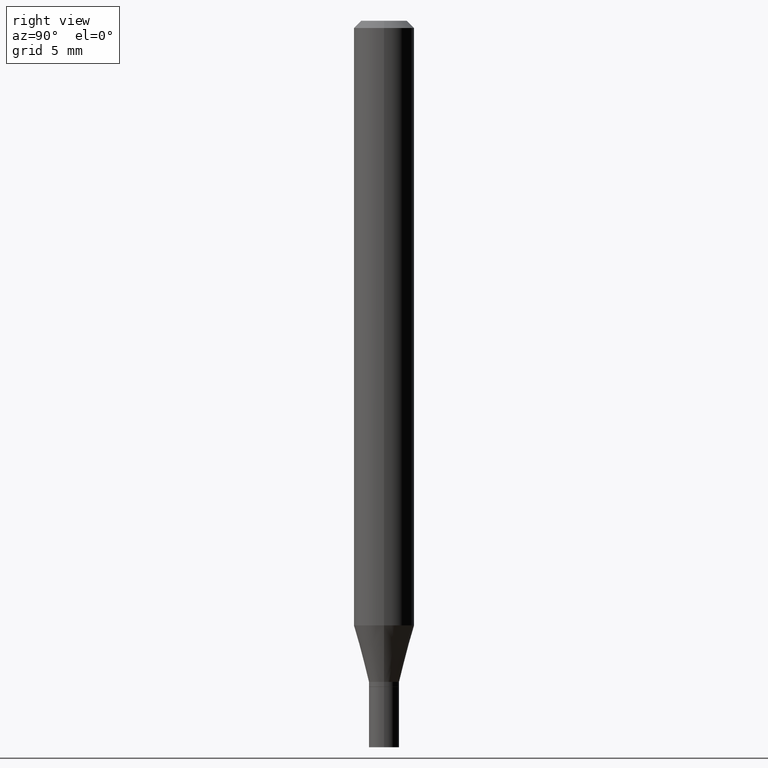
[diagram: clean part render]
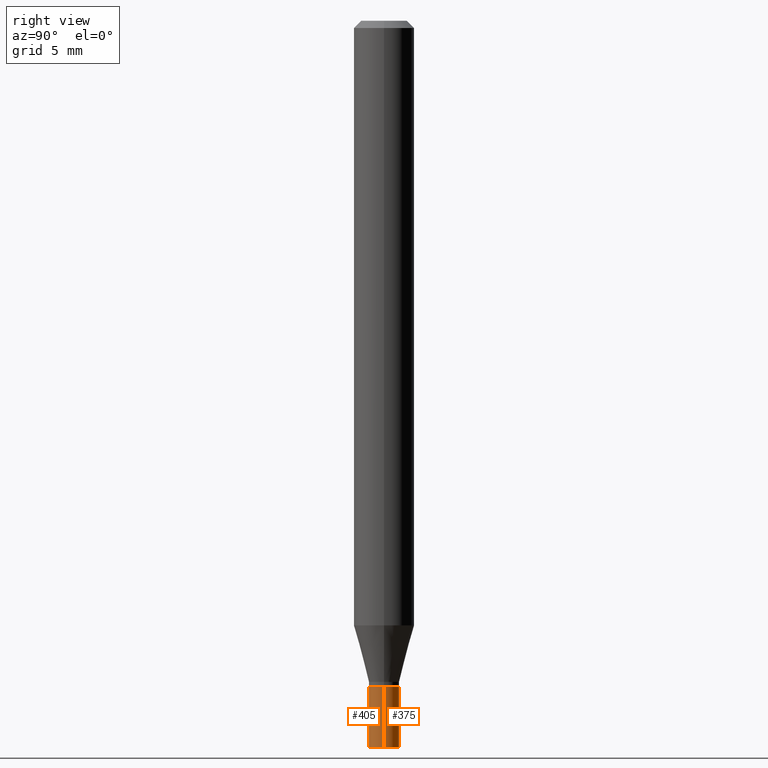
[diagram: same view with one multi-face feature highlighted, each face labeled with its STEP entity id]
A machine part, right view. The highlighted faces form ONE feature: a constant-radius fillet chain: 2 tangent blend faces with common blend radius 0.7938 mm. The faces share edges in the B-rep.
Their STEP definitions:
[1] entity #375 (Cylinder):
#17 = DIRECTION ( 'NONE',  ( -2.445468806185136877E-29, 3.491481338843145188E-15, 1.000000000000000000 ) ) ;
#21 = FACE_OUTER_BOUND ( 'NONE', #22, .T. ) ;
#22 = EDGE_LOOP ( 'NONE', ( #427, #107, #424, #59 ) ) ;
#23 = AXIS2_PLACEMENT_3D ( 'NONE', #282, #453, #243 ) ;
#52 = DIRECTION ( 'NONE',  ( -2.445468806185136597E-29, 3.491481338843145583E-15, 1.000000000000000000 ) ) ;
#59 = ORIENTED_EDGE ( 'NONE', *, *, #293, .F. ) ;
#78 = EDGE_CURVE ( 'NONE', #215, #431, #151, .T. ) ;
#86 = CARTESIAN_POINT ( 'NONE',  ( 3.668203209277704895E-29, -5.237222008264718177E-15, -1.500000000000000222 ) ) ;
#107 = ORIENTED_EDGE ( 'NONE', *, *, #121, .T. ) ;
#111 = AXIS2_PLACEMENT_3D ( 'NONE', #253, #137, #326 ) ;
#121 = EDGE_CURVE ( 'NONE', #431, #280, #276, .T. ) ;
#137 = DIRECTION ( 'NONE',  ( -2.445468806185136597E-29, 3.491481338843145583E-15, 1.000000000000000000 ) ) ;
#151 = CIRCLE ( 'NONE', #218, 0.03125000000000000694 ) ;
#191 = CARTESIAN_POINT ( 'NONE',  ( 0.03125000000000000694, -5.455439591942414011E-15, -1.500000000000000222 ) ) ;
#197 = CARTESIAN_POINT ( 'NONE',  ( 0.03125000000000000694, -5.019004424587020764E-15, -1.375000000000000000 ) ) ;
#210 = CARTESIAN_POINT ( 'NONE',  ( -0.03125000000000000694, -4.796959819661991034E-15, -1.500000000000000222 ) ) ;
#215 = VERTEX_POINT ( 'NONE', #191 ) ;
#218 = AXIS2_PLACEMENT_3D ( 'NONE', #86, #52, #379 ) ;
#233 = CIRCLE ( 'NONE', #111, 0.03125000000000000694 ) ;
#237 = CYLINDRICAL_SURFACE ( 'NONE', #23, 0.03125000000000000694 ) ;
#243 = DIRECTION ( 'NONE',  ( 1.000000000000000000, -6.982962677686267499E-15, 4.876176775795935793E-29 ) ) ;
#253 = CARTESIAN_POINT ( 'NONE',  ( 3.362519608504562260E-29, -4.800786840909324930E-15, -1.375000000000000000 ) ) ;
#264 = VECTOR ( 'NONE', #385, 39.37007874015748143 ) ;
#276 = LINE ( 'NONE', #417, #264 ) ;
#280 = VERTEX_POINT ( 'NONE', #337 ) ;
#282 = CARTESIAN_POINT ( 'NONE',  ( 0.000000000000000000, 0.000000000000000000, 0.000000000000000000 ) ) ;
#293 = EDGE_CURVE ( 'NONE', #215, #390, #307, .T. ) ;
#307 = LINE ( 'NONE', #386, #461 ) ;
#326 = DIRECTION ( 'NONE',  ( 1.000000000000000000, -6.982962677686261189E-15, 0.000000000000000000 ) ) ;
#337 = CARTESIAN_POINT ( 'NONE',  ( -0.03125000000000000694, -4.796959819661991034E-15, -1.375000000000000000 ) ) ;
#375 = ADVANCED_FACE ( 'NONE', ( #21 ), #237, .T. ) ;
#379 = DIRECTION ( 'NONE',  ( 1.000000000000000000, -6.982962677686261189E-15, 0.000000000000000000 ) ) ;
#385 = DIRECTION ( 'NONE',  ( -2.445468806185136877E-29, 3.491481338843145188E-15, 1.000000000000000000 ) ) ;
#386 = CARTESIAN_POINT ( 'NONE',  ( 0.03125000000000000694, -2.182175836776959087E-16, 1.523805242436230286E-30 ) ) ;
#390 = VERTEX_POINT ( 'NONE', #197 ) ;
#417 = CARTESIAN_POINT ( 'NONE',  ( -0.03125000000000000694, 2.220446049250313574E-16, -1.537167215704658582E-30 ) ) ;
#424 = ORIENTED_EDGE ( 'NONE', *, *, #450, .F. ) ;
#427 = ORIENTED_EDGE ( 'NONE', *, *, #78, .T. ) ;
#431 = VERTEX_POINT ( 'NONE', #210 ) ;
#450 = EDGE_CURVE ( 'NONE', #390, #280, #233, .T. ) ;
#453 = DIRECTION ( 'NONE',  ( -2.445468806185136597E-29, 3.491481338843145583E-15, 1.000000000000000000 ) ) ;
#461 = VECTOR ( 'NONE', #17, 39.37007874015748143 ) ;
[2] entity #405 (Cylinder):
#8 = AXIS2_PLACEMENT_3D ( 'NONE', #119, #44, #185 ) ;
#17 = DIRECTION ( 'NONE',  ( -2.445468806185136877E-29, 3.491481338843145188E-15, 1.000000000000000000 ) ) ;
#44 = DIRECTION ( 'NONE',  ( -2.445468806185136597E-29, 3.491481338843145583E-15, 1.000000000000000000 ) ) ;
#60 = DIRECTION ( 'NONE',  ( -2.445468806185136597E-29, 3.491481338843145583E-15, 1.000000000000000000 ) ) ;
#76 = CARTESIAN_POINT ( 'NONE',  ( 3.362519608504562260E-29, -4.800786840909324930E-15, -1.375000000000000000 ) ) ;
#79 = DIRECTION ( 'NONE',  ( -2.445468806185136597E-29, 3.491481338843145583E-15, 1.000000000000000000 ) ) ;
#104 = ORIENTED_EDGE ( 'NONE', *, *, #260, .T. ) ;
#119 = CARTESIAN_POINT ( 'NONE',  ( 3.668203209277704895E-29, -5.237222008264718177E-15, -1.500000000000000222 ) ) ;
#121 = EDGE_CURVE ( 'NONE', #431, #280, #276, .T. ) ;
#158 = DIRECTION ( 'NONE',  ( 1.000000000000000000, -6.982962677686267499E-15, 4.876176775795935793E-29 ) ) ;
#161 = EDGE_LOOP ( 'NONE', ( #428, #104, #312, #249 ) ) ;
#185 = DIRECTION ( 'NONE',  ( 1.000000000000000000, -6.982962677686261189E-15, 0.000000000000000000 ) ) ;
#191 = CARTESIAN_POINT ( 'NONE',  ( 0.03125000000000000694, -5.455439591942414011E-15, -1.500000000000000222 ) ) ;
#197 = CARTESIAN_POINT ( 'NONE',  ( 0.03125000000000000694, -5.019004424587020764E-15, -1.375000000000000000 ) ) ;
#201 = CYLINDRICAL_SURFACE ( 'NONE', #294, 0.03125000000000000694 ) ;
#207 = FACE_OUTER_BOUND ( 'NONE', #161, .T. ) ;
#210 = CARTESIAN_POINT ( 'NONE',  ( -0.03125000000000000694, -4.796959819661991034E-15, -1.500000000000000222 ) ) ;
#215 = VERTEX_POINT ( 'NONE', #191 ) ;
#236 = CARTESIAN_POINT ( 'NONE',  ( 0.000000000000000000, 0.000000000000000000, 0.000000000000000000 ) ) ;
#249 = ORIENTED_EDGE ( 'NONE', *, *, #261, .F. ) ;
#260 = EDGE_CURVE ( 'NONE', #431, #215, #322, .T. ) ;
#261 = EDGE_CURVE ( 'NONE', #280, #390, #408, .T. ) ;
#264 = VECTOR ( 'NONE', #385, 39.37007874015748143 ) ;
#276 = LINE ( 'NONE', #417, #264 ) ;
#280 = VERTEX_POINT ( 'NONE', #337 ) ;
#293 = EDGE_CURVE ( 'NONE', #215, #390, #307, .T. ) ;
#294 = AXIS2_PLACEMENT_3D ( 'NONE', #236, #60, #158 ) ;
#307 = LINE ( 'NONE', #386, #461 ) ;
#312 = ORIENTED_EDGE ( 'NONE', *, *, #293, .T. ) ;
#322 = CIRCLE ( 'NONE', #8, 0.03125000000000000694 ) ;
#333 = DIRECTION ( 'NONE',  ( 1.000000000000000000, -6.982962677686261189E-15, 0.000000000000000000 ) ) ;
#337 = CARTESIAN_POINT ( 'NONE',  ( -0.03125000000000000694, -4.796959819661991034E-15, -1.375000000000000000 ) ) ;
#385 = DIRECTION ( 'NONE',  ( -2.445468806185136877E-29, 3.491481338843145188E-15, 1.000000000000000000 ) ) ;
#386 = CARTESIAN_POINT ( 'NONE',  ( 0.03125000000000000694, -2.182175836776959087E-16, 1.523805242436230286E-30 ) ) ;
#390 = VERTEX_POINT ( 'NONE', #197 ) ;
#405 = ADVANCED_FACE ( 'NONE', ( #207 ), #201, .T. ) ;
#408 = CIRCLE ( 'NONE', #452, 0.03125000000000000694 ) ;
#417 = CARTESIAN_POINT ( 'NONE',  ( -0.03125000000000000694, 2.220446049250313574E-16, -1.537167215704658582E-30 ) ) ;
#428 = ORIENTED_EDGE ( 'NONE', *, *, #121, .F. ) ;
#431 = VERTEX_POINT ( 'NONE', #210 ) ;
#452 = AXIS2_PLACEMENT_3D ( 'NONE', #76, #79, #333 ) ;
#461 = VECTOR ( 'NONE', #17, 39.37007874015748143 ) ;